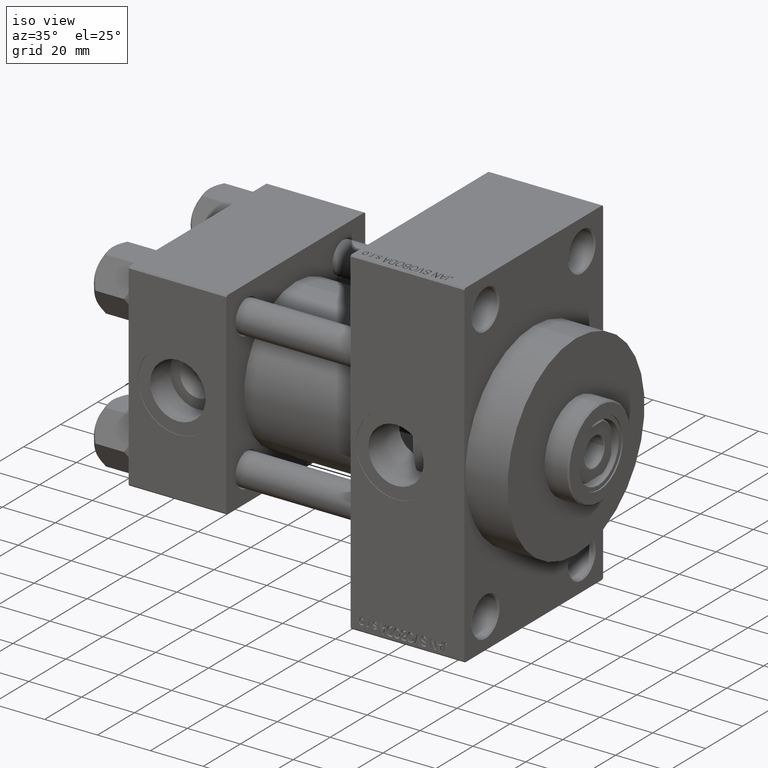
[diagram: clean part render]
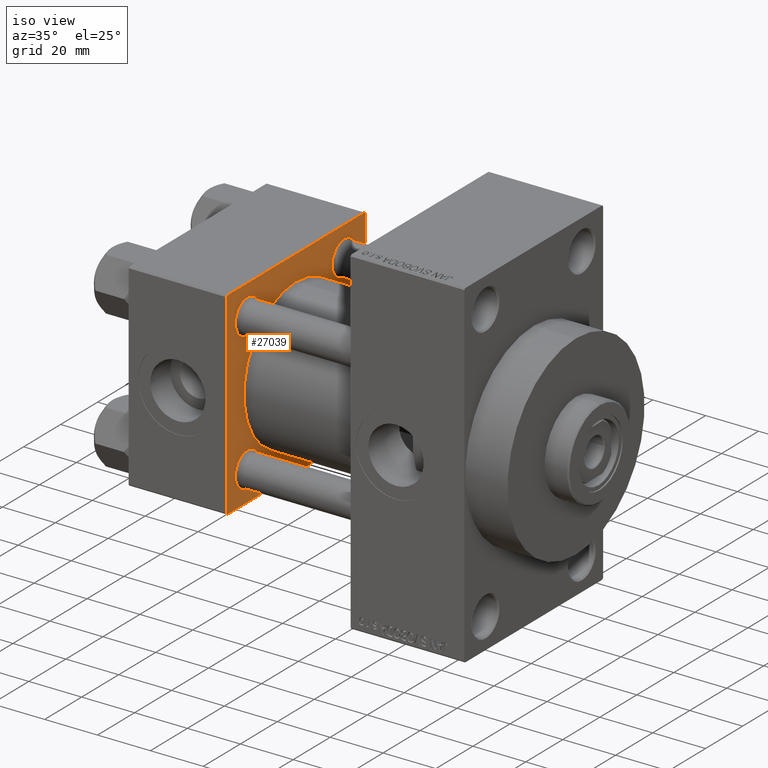
[diagram: same view with one face highlighted and labeled with its STEP entity id]
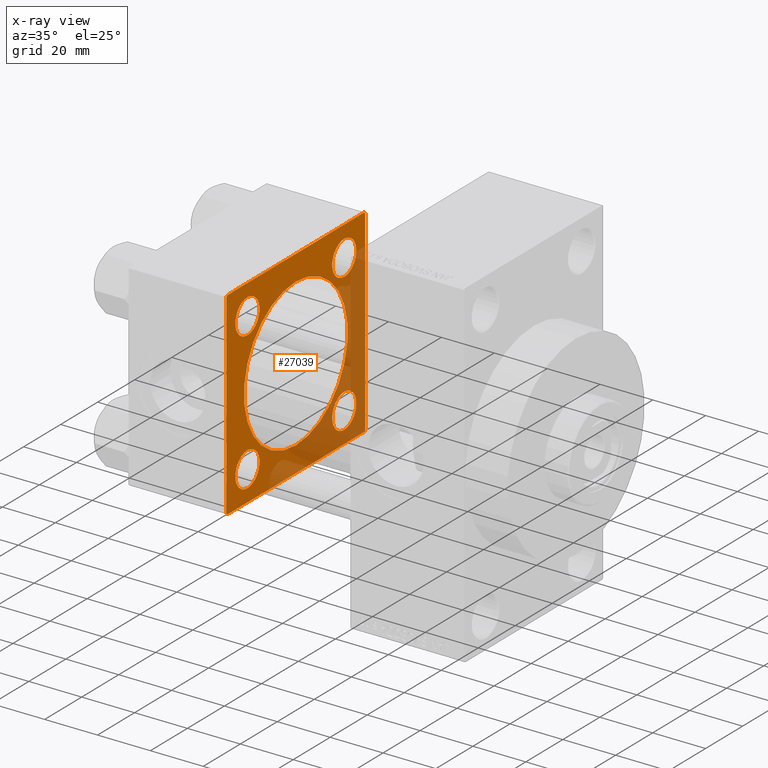
[diagram: x-ray of the same camera — body ghosted, the highlighted face saturated]
A machine part, iso view. The second image highlights one B-rep face of the part: STEP entity #27039.
The next image is the same camera in x-ray: the body ghosted, the highlighted face saturated — about 38% of this face is hidden behind the body in this view.
In plain terms, the highlighted planar face has unit normal (-1, 0, 0).
Its self-contained STEP definition (entity closure, byte-faithful):
#1169 = AXIS2_PLACEMENT_3D ( 'NONE', #5456, #40108, #47323 ) ;
#1182 = DIRECTION ( 'NONE',  ( 0.000000000000000000, 0.000000000000000000, 1.000000000000000000 ) ) ;
#1425 = CIRCLE ( 'NONE', #19785, 6.500000000000002665 ) ;
#1430 = ORIENTED_EDGE ( 'NONE', *, *, #2155, .F. ) ;
#1751 = DIRECTION ( 'NONE',  ( -1.000000000000000000, 0.000000000000000000, -0.000000000000000000 ) ) ;
#2155 = EDGE_CURVE ( 'NONE', #26380, #15813, #35901, .T. ) ;
#2613 = ORIENTED_EDGE ( 'NONE', *, *, #33736, .T. ) ;
#2692 = CIRCLE ( 'NONE', #30572, 6.500000000000002665 ) ;
#2970 = VERTEX_POINT ( 'NONE', #41896 ) ;
#3796 = DIRECTION ( 'NONE',  ( 0.000000000000000000, 0.000000000000000000, 1.000000000000000000 ) ) ;
#4458 = CARTESIAN_POINT ( 'NONE',  ( 37.00000000000000000, 37.49999999999999289, -36.99999999999998579 ) ) ;
#4511 = ORIENTED_EDGE ( 'NONE', *, *, #9217, .T. ) ;
#4531 = DIRECTION ( 'NONE',  ( 0.000000000000000000, 0.000000000000000000, 1.000000000000000000 ) ) ;
#5030 = EDGE_CURVE ( 'NONE', #44129, #10452, #47134, .T. ) ;
#5196 = VERTEX_POINT ( 'NONE', #35883 ) ;
#5456 = CARTESIAN_POINT ( 'NONE',  ( 37.00000000000000000, 26.14999999999999858, 26.15000000000000213 ) ) ;
#5944 = CARTESIAN_POINT ( 'NONE',  ( 37.00000000000000000, -26.14999999999999147, -26.15000000000000924 ) ) ;
#6223 = CARTESIAN_POINT ( 'NONE',  ( 37.00000000000000000, -26.14999999999999147, -32.65000000000001279 ) ) ;
#7762 = EDGE_CURVE ( 'NONE', #17478, #2970, #45670, .T. ) ;
#8207 = DIRECTION ( 'NONE',  ( -0.000000000000000000, 0.7071067811865474617, 0.7071067811865474617 ) ) ;
#8649 = AXIS2_PLACEMENT_3D ( 'NONE', #47774, #17633, #31847 ) ;
#9217 = EDGE_CURVE ( 'NONE', #28951, #17720, #2692, .T. ) ;
#10148 = ORIENTED_EDGE ( 'NONE', *, *, #21744, .F. ) ;
#10164 = LINE ( 'NONE', #44071, #10867 ) ;
#10452 = VERTEX_POINT ( 'NONE', #44561 ) ;
#10751 = CARTESIAN_POINT ( 'NONE',  ( 37.00000000000000000, 37.49999999999999289, 37.50000000000000000 ) ) ;
#10867 = VECTOR ( 'NONE', #29882, 1000.000000000000114 ) ;
#11143 = CARTESIAN_POINT ( 'NONE',  ( 37.00000000000000000, -26.14999999999999147, 26.15000000000000924 ) ) ;
#11382 = EDGE_LOOP ( 'NONE', ( #2613, #14690 ) ) ;
#11413 = LINE ( 'NONE', #41580, #44911 ) ;
#11523 = CIRCLE ( 'NONE', #1169, 6.500000000000030198 ) ;
#11599 = AXIS2_PLACEMENT_3D ( 'NONE', #29420, #21449, #24929 ) ;
#12317 = CARTESIAN_POINT ( 'NONE',  ( 37.00000000000000000, 8.269258236473784371E-16, -28.00000000000000000 ) ) ;
#12656 = ORIENTED_EDGE ( 'NONE', *, *, #5030, .T. ) ;
#12741 = LINE ( 'NONE', #30972, #18929 ) ;
#13107 = EDGE_LOOP ( 'NONE', ( #48766, #4511 ) ) ;
#13482 = ORIENTED_EDGE ( 'NONE', *, *, #24061, .T. ) ;
#13489 = DIRECTION ( 'NONE',  ( 1.000000000000000000, -0.000000000000000000, 0.000000000000000000 ) ) ;
#14018 = ORIENTED_EDGE ( 'NONE', *, *, #34368, .T. ) ;
#14118 = FACE_BOUND ( 'NONE', #11382, .T. ) ;
#14456 = EDGE_CURVE ( 'NONE', #40568, #44129, #11413, .T. ) ;
#14690 = ORIENTED_EDGE ( 'NONE', *, *, #36471, .T. ) ;
#15153 = VERTEX_POINT ( 'NONE', #30449 ) ;
#15261 = EDGE_LOOP ( 'NONE', ( #34812, #14018 ) ) ;
#15813 = VERTEX_POINT ( 'NONE', #36998 ) ;
#15870 = DIRECTION ( 'NONE',  ( -1.000000000000000000, 0.000000000000000000, -0.000000000000000000 ) ) ;
#17478 = VERTEX_POINT ( 'NONE', #22743 ) ;
#17496 = VECTOR ( 'NONE', #29196, 1000.000000000000114 ) ;
#17633 = DIRECTION ( 'NONE',  ( -1.000000000000000000, 0.000000000000000000, -0.000000000000000000 ) ) ;
#17704 = CARTESIAN_POINT ( 'NONE',  ( 37.00000000000000000, -26.14999999999999147, 32.65000000000001990 ) ) ;
#17720 = VERTEX_POINT ( 'NONE', #6223 ) ;
#18107 = FACE_BOUND ( 'NONE', #13107, .T. ) ;
#18399 = AXIS2_PLACEMENT_3D ( 'NONE', #25468, #13489, #29463 ) ;
#18663 = DIRECTION ( 'NONE',  ( 0.000000000000000000, 9.251858538542971581E-17, -1.000000000000000000 ) ) ;
#18929 = VECTOR ( 'NONE', #23731, 1000.000000000000000 ) ;
#19279 = CARTESIAN_POINT ( 'NONE',  ( 37.00000000000000000, 26.14999999999999858, 19.64999999999997016 ) ) ;
#19785 = AXIS2_PLACEMENT_3D ( 'NONE', #5944, #39864, #4531 ) ;
#19846 = EDGE_CURVE ( 'NONE', #19936, #40568, #10164, .T. ) ;
#19936 = VERTEX_POINT ( 'NONE', #41323 ) ;
#20730 = CARTESIAN_POINT ( 'NONE',  ( 37.00000000000000000, -26.14999999999999147, -26.15000000000000924 ) ) ;
#21249 = VECTOR ( 'NONE', #36451, 1000.000000000000000 ) ;
#21449 = DIRECTION ( 'NONE',  ( -1.000000000000000000, 0.000000000000000000, -0.000000000000000000 ) ) ;
#21623 = FACE_BOUND ( 'NONE', #43199, .T. ) ;
#21744 = EDGE_CURVE ( 'NONE', #15153, #10452, #12741, .T. ) ;
#21777 = ORIENTED_EDGE ( 'NONE', *, *, #37873, .T. ) ;
#22105 = DIRECTION ( 'NONE',  ( -1.000000000000000000, 0.000000000000000000, -0.000000000000000000 ) ) ;
#22704 = LINE ( 'NONE', #4458, #24573 ) ;
#22743 = CARTESIAN_POINT ( 'NONE',  ( 37.00000000000000000, 37.49999999999999289, 37.00000000000000000 ) ) ;
#22771 = EDGE_CURVE ( 'NONE', #17720, #28951, #1425, .T. ) ;
#23731 = DIRECTION ( 'NONE',  ( 0.000000000000000000, -1.000000000000000000, -9.251858538542972814E-17 ) ) ;
#23898 = CARTESIAN_POINT ( 'NONE',  ( 37.00000000000000000, -26.14999999999999147, -19.65000000000000924 ) ) ;
#24061 = EDGE_CURVE ( 'NONE', #15153, #2970, #22704, .T. ) ;
#24573 = VECTOR ( 'NONE', #8207, 1000.000000000000114 ) ;
#24929 = DIRECTION ( 'NONE',  ( 0.000000000000000000, 0.000000000000000000, 1.000000000000000000 ) ) ;
#25468 = CARTESIAN_POINT ( 'NONE',  ( 37.00000000000000000, -2.602085213965210642E-15, 0.000000000000000000 ) ) ;
#25979 = LINE ( 'NONE', #10751, #21249 ) ;
#26175 = ORIENTED_EDGE ( 'NONE', *, *, #30074, .T. ) ;
#26257 = CARTESIAN_POINT ( 'NONE',  ( 37.00000000000000000, 26.14999999999999858, -26.15000000000000213 ) ) ;
#26266 = CARTESIAN_POINT ( 'NONE',  ( 37.00000000000000000, 37.49999999999999289, 37.50000000000000000 ) ) ;
#26380 = VERTEX_POINT ( 'NONE', #12317 ) ;
#26550 = VERTEX_POINT ( 'NONE', #19279 ) ;
#26623 = VERTEX_POINT ( 'NONE', #38448 ) ;
#26736 = CIRCLE ( 'NONE', #11599, 6.500000000000008882 ) ;
#26981 = AXIS2_PLACEMENT_3D ( 'NONE', #39816, #28618, #1182 ) ;
#27039 = ADVANCED_FACE ( 'NONE', ( #18107, #21623, #14118, #28165, #47079, #48502 ), #33072, .F. ) ;
#28165 = FACE_BOUND ( 'NONE', #15261, .T. ) ;
#28392 = EDGE_CURVE ( 'NONE', #26623, #47412, #35748, .T. ) ;
#28618 = DIRECTION ( 'NONE',  ( -1.000000000000000000, 0.000000000000000000, -0.000000000000000000 ) ) ;
#28951 = VERTEX_POINT ( 'NONE', #23898 ) ;
#29196 = DIRECTION ( 'NONE',  ( 0.000000000000000000, -0.7071067811865474617, 0.7071067811865474617 ) ) ;
#29323 = ORIENTED_EDGE ( 'NONE', *, *, #29924, .T. ) ;
#29360 = AXIS2_PLACEMENT_3D ( 'NONE', #44271, #22105, #40547 ) ;
#29420 = CARTESIAN_POINT ( 'NONE',  ( 37.00000000000000000, -26.14999999999999147, 26.15000000000000924 ) ) ;
#29463 = DIRECTION ( 'NONE',  ( 0.000000000000000000, 0.000000000000000000, 1.000000000000000000 ) ) ;
#29882 = DIRECTION ( 'NONE',  ( -0.000000000000000000, -0.7071067811865474617, -0.7071067811865474617 ) ) ;
#29924 = EDGE_CURVE ( 'NONE', #47412, #26623, #33435, .T. ) ;
#30074 = EDGE_CURVE ( 'NONE', #17478, #40441, #48107, .T. ) ;
#30449 = CARTESIAN_POINT ( 'NONE',  ( 37.00000000000000000, 36.99999999999997868, -37.50000000000000000 ) ) ;
#30572 = AXIS2_PLACEMENT_3D ( 'NONE', #20730, #1751, #32674 ) ;
#30972 = CARTESIAN_POINT ( 'NONE',  ( 37.00000000000000000, 37.49999999999999289, -37.50000000000000000 ) ) ;
#31114 = CARTESIAN_POINT ( 'NONE',  ( 37.00000000000000000, -37.50000000000000711, 36.99999999999999289 ) ) ;
#31756 = ORIENTED_EDGE ( 'NONE', *, *, #7762, .F. ) ;
#31847 = DIRECTION ( 'NONE',  ( 0.000000000000000000, 0.000000000000000000, 1.000000000000000000 ) ) ;
#31954 = CARTESIAN_POINT ( 'NONE',  ( 37.00000000000000000, -37.00000000000002132, -37.50000000000000711 ) ) ;
#32674 = DIRECTION ( 'NONE',  ( 0.000000000000000000, 0.000000000000000000, 1.000000000000000000 ) ) ;
#32906 = DIRECTION ( 'NONE',  ( 1.000000000000000000, -0.000000000000000000, 0.000000000000000000 ) ) ;
#33072 = PLANE ( 'NONE',  #29360 ) ;
#33435 = CIRCLE ( 'NONE', #44554, 6.500000000000030198 ) ;
#33645 = ORIENTED_EDGE ( 'NONE', *, *, #42272, .F. ) ;
#33736 = EDGE_CURVE ( 'NONE', #43197, #38112, #42550, .T. ) ;
#33758 = EDGE_LOOP ( 'NONE', ( #33645, #1430 ) ) ;
#34368 = EDGE_CURVE ( 'NONE', #5196, #26550, #11523, .T. ) ;
#34720 = DIRECTION ( 'NONE',  ( 0.000000000000000000, 0.000000000000000000, -1.000000000000000000 ) ) ;
#34812 = ORIENTED_EDGE ( 'NONE', *, *, #43719, .T. ) ;
#35748 = CIRCLE ( 'NONE', #8649, 6.500000000000030198 ) ;
#35883 = CARTESIAN_POINT ( 'NONE',  ( 37.00000000000000000, 26.14999999999999858, 32.65000000000004121 ) ) ;
#35901 = CIRCLE ( 'NONE', #18399, 28.00000000000000000 ) ;
#36451 = DIRECTION ( 'NONE',  ( 0.000000000000000000, -1.000000000000000000, -9.251858538542971581E-17 ) ) ;
#36471 = EDGE_CURVE ( 'NONE', #38112, #43197, #26736, .T. ) ;
#36509 = CIRCLE ( 'NONE', #45247, 28.00000000000000000 ) ;
#36662 = CARTESIAN_POINT ( 'NONE',  ( 37.00000000000000000, 36.99999999999999289, 37.50000000000000000 ) ) ;
#36998 = CARTESIAN_POINT ( 'NONE',  ( 37.00000000000000000, -2.602085213965210642E-15, 28.00000000000000000 ) ) ;
#37668 = VECTOR ( 'NONE', #34720, 1000.000000000000000 ) ;
#37873 = EDGE_CURVE ( 'NONE', #40441, #19936, #25979, .T. ) ;
#37941 = DIRECTION ( 'NONE',  ( -1.000000000000000000, 0.000000000000000000, -0.000000000000000000 ) ) ;
#38112 = VERTEX_POINT ( 'NONE', #17704 ) ;
#38167 = CARTESIAN_POINT ( 'NONE',  ( 37.00000000000000000, -26.14999999999999147, 19.65000000000000213 ) ) ;
#38233 = ORIENTED_EDGE ( 'NONE', *, *, #14456, .T. ) ;
#38297 = ORIENTED_EDGE ( 'NONE', *, *, #19846, .T. ) ;
#38448 = CARTESIAN_POINT ( 'NONE',  ( 37.00000000000000000, 26.14999999999999858, -32.65000000000003411 ) ) ;
#39673 = DIRECTION ( 'NONE',  ( 0.000000000000000000, 0.7071067811865524577, -0.7071067811865426878 ) ) ;
#39816 = CARTESIAN_POINT ( 'NONE',  ( 37.00000000000000000, 26.14999999999999858, 26.15000000000000213 ) ) ;
#39864 = DIRECTION ( 'NONE',  ( -1.000000000000000000, 0.000000000000000000, -0.000000000000000000 ) ) ;
#39885 = CARTESIAN_POINT ( 'NONE',  ( 37.00000000000000000, -2.602085213965210642E-15, 0.000000000000000000 ) ) ;
#40108 = DIRECTION ( 'NONE',  ( -1.000000000000000000, 0.000000000000000000, -0.000000000000000000 ) ) ;
#40441 = VERTEX_POINT ( 'NONE', #44576 ) ;
#40547 = DIRECTION ( 'NONE',  ( -0.000000000000000000, 0.000000000000000000, 1.000000000000000000 ) ) ;
#40568 = VERTEX_POINT ( 'NONE', #31114 ) ;
#41323 = CARTESIAN_POINT ( 'NONE',  ( 37.00000000000000000, -37.00000000000000711, 37.49999999999999289 ) ) ;
#41500 = ORIENTED_EDGE ( 'NONE', *, *, #28392, .T. ) ;
#41580 = CARTESIAN_POINT ( 'NONE',  ( 37.00000000000000000, -37.50000000000000711, 37.49999999999999289 ) ) ;
#41896 = CARTESIAN_POINT ( 'NONE',  ( 37.00000000000000000, 37.49999999999999289, -36.99999999999998579 ) ) ;
#42272 = EDGE_CURVE ( 'NONE', #15813, #26380, #36509, .T. ) ;
#42550 = CIRCLE ( 'NONE', #43355, 6.500000000000008882 ) ;
#43197 = VERTEX_POINT ( 'NONE', #38167 ) ;
#43199 = EDGE_LOOP ( 'NONE', ( #41500, #29323 ) ) ;
#43355 = AXIS2_PLACEMENT_3D ( 'NONE', #11143, #15870, #45535 ) ;
#43481 = CARTESIAN_POINT ( 'NONE',  ( 37.00000000000000000, 26.14999999999999858, -19.64999999999997371 ) ) ;
#43671 = CIRCLE ( 'NONE', #26981, 6.500000000000030198 ) ;
#43719 = EDGE_CURVE ( 'NONE', #26550, #5196, #43671, .T. ) ;
#43860 = DIRECTION ( 'NONE',  ( 0.000000000000000000, 0.000000000000000000, 1.000000000000000000 ) ) ;
#44071 = CARTESIAN_POINT ( 'NONE',  ( 37.00000000000000000, -37.50000000000000711, 36.99999999999999289 ) ) ;
#44090 = EDGE_LOOP ( 'NONE', ( #10148, #13482, #31756, #26175, #21777, #38297, #38233, #12656 ) ) ;
#44129 = VERTEX_POINT ( 'NONE', #48211 ) ;
#44271 = CARTESIAN_POINT ( 'NONE',  ( 37.00000000000000000, 0.000000000000000000, 0.000000000000000000 ) ) ;
#44554 = AXIS2_PLACEMENT_3D ( 'NONE', #26257, #37941, #3796 ) ;
#44561 = CARTESIAN_POINT ( 'NONE',  ( 37.00000000000000000, -37.00000000000002132, -37.50000000000000711 ) ) ;
#44576 = CARTESIAN_POINT ( 'NONE',  ( 37.00000000000000000, 36.99999999999999289, 37.50000000000000000 ) ) ;
#44911 = VECTOR ( 'NONE', #18663, 1000.000000000000000 ) ;
#45247 = AXIS2_PLACEMENT_3D ( 'NONE', #39885, #32906, #43860 ) ;
#45535 = DIRECTION ( 'NONE',  ( 0.000000000000000000, 0.000000000000000000, 1.000000000000000000 ) ) ;
#45670 = LINE ( 'NONE', #26266, #37668 ) ;
#47079 = FACE_BOUND ( 'NONE', #33758, .T. ) ;
#47134 = LINE ( 'NONE', #31954, #48691 ) ;
#47323 = DIRECTION ( 'NONE',  ( 0.000000000000000000, 0.000000000000000000, 1.000000000000000000 ) ) ;
#47412 = VERTEX_POINT ( 'NONE', #43481 ) ;
#47774 = CARTESIAN_POINT ( 'NONE',  ( 37.00000000000000000, 26.14999999999999858, -26.15000000000000213 ) ) ;
#48107 = LINE ( 'NONE', #36662, #17496 ) ;
#48211 = CARTESIAN_POINT ( 'NONE',  ( 37.00000000000000000, -37.50000000000000000, -37.00000000000003553 ) ) ;
#48502 = FACE_OUTER_BOUND ( 'NONE', #44090, .T. ) ;
#48691 = VECTOR ( 'NONE', #39673, 1000.000000000000000 ) ;
#48766 = ORIENTED_EDGE ( 'NONE', *, *, #22771, .T. ) ;